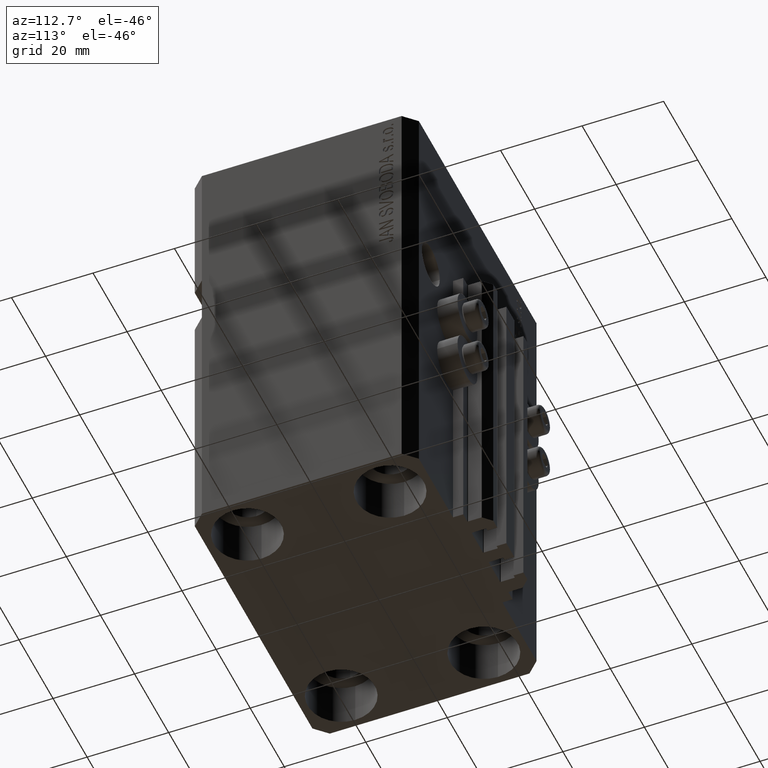
[diagram: clean part render]
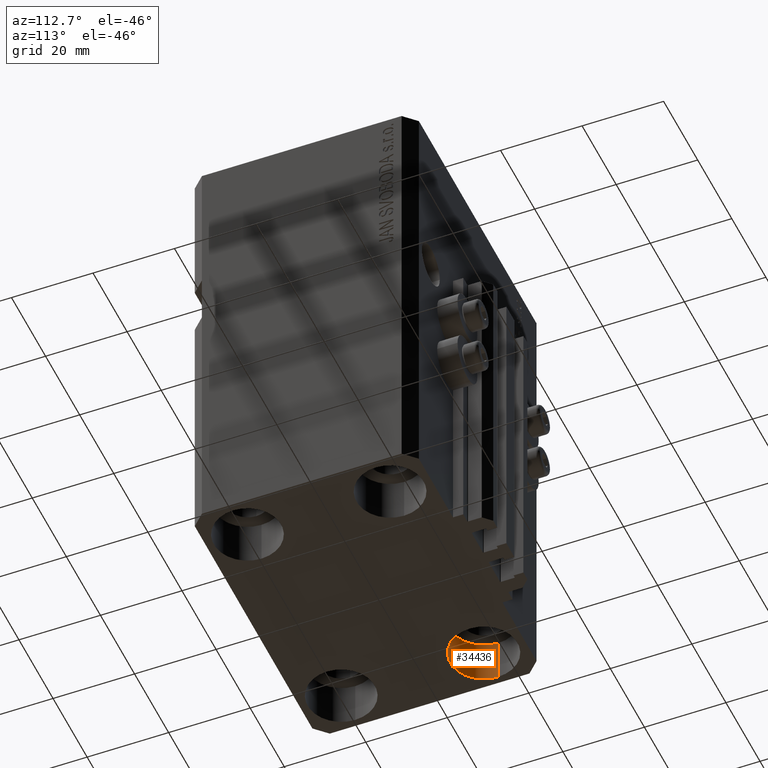
[diagram: same view with one face highlighted and labeled with its STEP entity id]
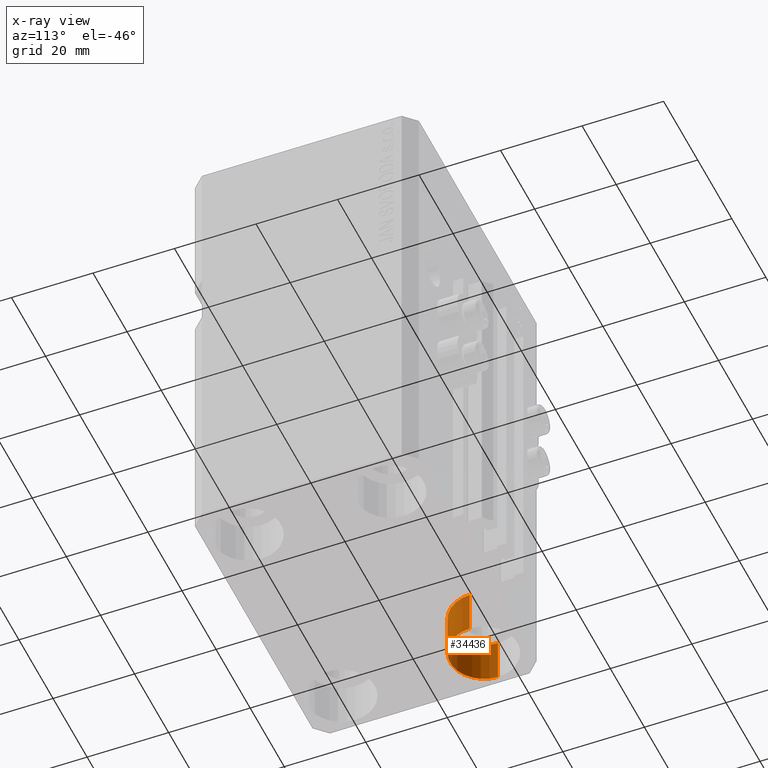
[diagram: x-ray of the same camera — body ghosted, the highlighted face saturated]
A machine part, auxiliary view. The second image highlights one B-rep face of the part: STEP entity #34436.
The next image is the same camera in x-ray: the body ghosted, the highlighted face saturated — about 0% of this face is hidden behind the body in this view.
In plain terms, the highlighted cylindrical surface (edge-blend (fillet) strip) has radius 8.25 mm, axis along (-0, -0, -1).
Its self-contained STEP definition (entity closure, byte-faithful):
#251 = VERTEX_POINT ( 'NONE', #27939 ) ;
#996 = EDGE_CURVE ( 'NONE', #11201, #32039, #12292, .T. ) ;
#1863 = CARTESIAN_POINT ( 'NONE',  ( -35.75000000000000711, 17.50000000000000000, -99.00000000000000000 ) ) ;
#2099 = DIRECTION ( 'NONE',  ( -0.000000000000000000, -0.000000000000000000, -1.000000000000000000 ) ) ;
#2671 = FACE_OUTER_BOUND ( 'NONE', #5658, .T. ) ;
#5658 = EDGE_LOOP ( 'NONE', ( #32598, #23226, #26256, #17381 ) ) ;
#6357 = CARTESIAN_POINT ( 'NONE',  ( -19.25000000000000355, 17.50000000000000000, -99.00000000000000000 ) ) ;
#9898 = DIRECTION ( 'NONE',  ( -0.000000000000000000, -0.000000000000000000, -1.000000000000000000 ) ) ;
#11201 = VERTEX_POINT ( 'NONE', #6357 ) ;
#12033 = AXIS2_PLACEMENT_3D ( 'NONE', #41960, #9898, #34938 ) ;
#12292 = LINE ( 'NONE', #20244, #24851 ) ;
#13417 = CYLINDRICAL_SURFACE ( 'NONE', #12033, 8.250000000000000000 ) ;
#14035 = CARTESIAN_POINT ( 'NONE',  ( -27.50000000000000355, 17.50000000000000000, -99.00000000000000000 ) ) ;
#14343 = CARTESIAN_POINT ( 'NONE',  ( -35.75000000000000711, 17.50000000000000000, -99.00000000000000000 ) ) ;
#15717 = VECTOR ( 'NONE', #2099, 1000.000000000000000 ) ;
#17381 = ORIENTED_EDGE ( 'NONE', *, *, #33823, .F. ) ;
#17774 = DIRECTION ( 'NONE',  ( -0.000000000000000000, -0.000000000000000000, 1.000000000000000000 ) ) ;
#17879 = CIRCLE ( 'NONE', #29859, 8.250000000000000000 ) ;
#19805 = EDGE_CURVE ( 'NONE', #251, #32039, #27351, .T. ) ;
#20244 = CARTESIAN_POINT ( 'NONE',  ( -19.25000000000000355, 17.50000000000000000, -99.00000000000000000 ) ) ;
#23226 = ORIENTED_EDGE ( 'NONE', *, *, #996, .T. ) ;
#24808 = DIRECTION ( 'NONE',  ( 1.000000000000000000, 0.000000000000000000, 0.000000000000000000 ) ) ;
#24851 = VECTOR ( 'NONE', #34524, 1000.000000000000000 ) ;
#26256 = ORIENTED_EDGE ( 'NONE', *, *, #19805, .F. ) ;
#26609 = AXIS2_PLACEMENT_3D ( 'NONE', #41415, #33943, #34635 ) ;
#26941 = EDGE_CURVE ( 'NONE', #40050, #11201, #17879, .T. ) ;
#27351 = CIRCLE ( 'NONE', #26609, 8.250000000000000000 ) ;
#27939 = CARTESIAN_POINT ( 'NONE',  ( -35.75000000000000711, 17.50000000000000000, -110.0000000000000000 ) ) ;
#29859 = AXIS2_PLACEMENT_3D ( 'NONE', #14035, #17774, #24808 ) ;
#32039 = VERTEX_POINT ( 'NONE', #36471 ) ;
#32598 = ORIENTED_EDGE ( 'NONE', *, *, #26941, .T. ) ;
#33823 = EDGE_CURVE ( 'NONE', #40050, #251, #33904, .T. ) ;
#33904 = LINE ( 'NONE', #1863, #15717 ) ;
#33943 = DIRECTION ( 'NONE',  ( -0.000000000000000000, -0.000000000000000000, 1.000000000000000000 ) ) ;
#34436 = ADVANCED_FACE ( 'NONE', ( #2671 ), #13417, .F. ) ;
#34524 = DIRECTION ( 'NONE',  ( -0.000000000000000000, -0.000000000000000000, -1.000000000000000000 ) ) ;
#34635 = DIRECTION ( 'NONE',  ( 1.000000000000000000, 0.000000000000000000, 0.000000000000000000 ) ) ;
#34938 = DIRECTION ( 'NONE',  ( -1.000000000000000000, 0.000000000000000000, 0.000000000000000000 ) ) ;
#36471 = CARTESIAN_POINT ( 'NONE',  ( -19.25000000000000355, 17.50000000000000000, -110.0000000000000000 ) ) ;
#40050 = VERTEX_POINT ( 'NONE', #14343 ) ;
#41415 = CARTESIAN_POINT ( 'NONE',  ( -27.50000000000000355, 17.50000000000000000, -110.0000000000000000 ) ) ;
#41960 = CARTESIAN_POINT ( 'NONE',  ( -27.50000000000000355, 17.50000000000000000, -99.00000000000000000 ) ) ;